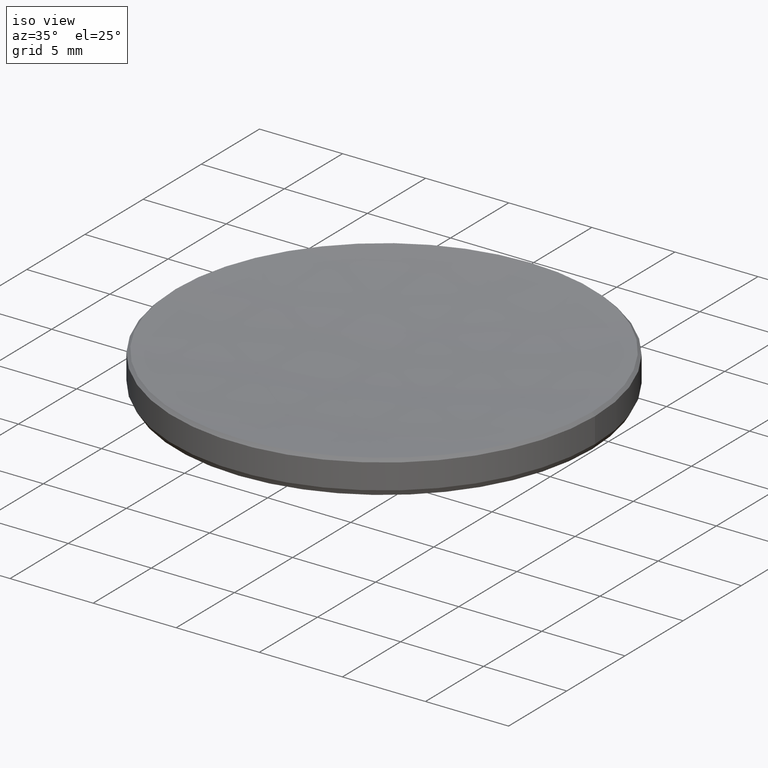
[diagram: clean part render]
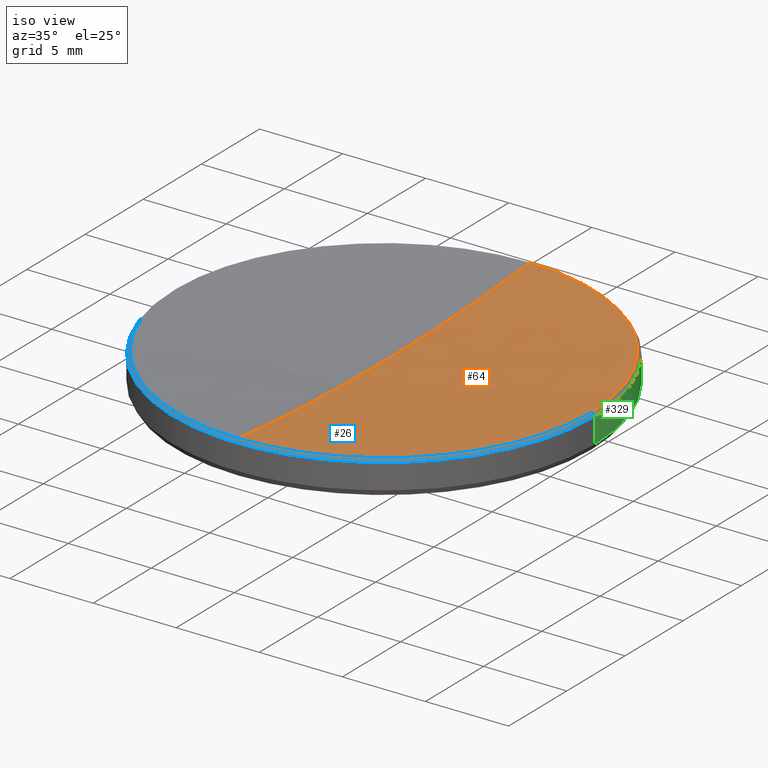
[diagram: same view with three faces highlighted in distinct colors, each labeled with its STEP entity id]
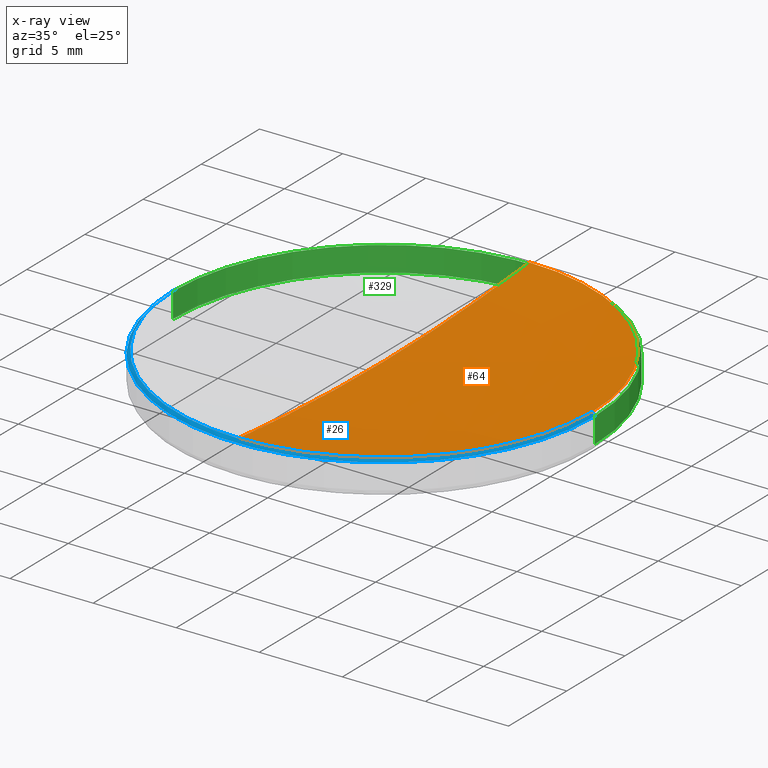
[diagram: x-ray of the same camera — body ghosted, the three highlighted faces saturated]
A machine part, iso view with three faces highlighted in distinct colors.
The next image is the same camera in x-ray (body ghosted, the three faces saturated) — at least one of them is partly hidden behind the body in this view.
Their STEP definitions:

[orange] entity #64 — the highlighted spherical surface has radius 131.56 mm.
#2 = VERTEX_POINT ( 'NONE', #222 ) ;
#9 = DIRECTION ( 'NONE',  ( 1.000000000000000000, 0.000000000000000000, 0.000000000000000000 ) ) ;
#21 = AXIS2_PLACEMENT_3D ( 'NONE', #190, #321, #36 ) ;
#22 = VERTEX_POINT ( 'NONE', #66 ) ;
#35 = CARTESIAN_POINT ( 'NONE',  ( 0.000000000000000000, 0.000000000000000000, 5.982434512500911516 ) ) ;
#36 = DIRECTION ( 'NONE',  ( -1.224646799147353207E-16, -1.000000000000000000, 0.000000000000000000 ) ) ;
#45 = DIRECTION ( 'NONE',  ( 1.000000000000000000, 0.000000000000000000, 0.000000000000000000 ) ) ;
#49 = ORIENTED_EDGE ( 'NONE', *, *, #319, .T. ) ;
#50 = EDGE_LOOP ( 'NONE', ( #210, #49, #77, #207 ) ) ;
#54 = CARTESIAN_POINT ( 'NONE',  ( 0.000000000000000000, 0.000000000000000000, 136.9455749538715850 ) ) ;
#62 = SPHERICAL_SURFACE ( 'NONE', #87, 131.5600000000000023 ) ;
#64 = ADVANCED_FACE ( 'NONE', ( #286 ), #62, .F. ) ;
#66 = CARTESIAN_POINT ( 'NONE',  ( 12.51756548749907694, 1.544130542827725172E-15, 5.982434512500911516 ) ) ;
#72 = AXIS2_PLACEMENT_3D ( 'NONE', #248, #45, #175 ) ;
#77 = ORIENTED_EDGE ( 'NONE', *, *, #135, .T. ) ;
#87 = AXIS2_PLACEMENT_3D ( 'NONE', #54, #143, #318 ) ;
#104 = VERTEX_POINT ( 'NONE', #236 ) ;
#111 = CIRCLE ( 'NONE', #279, 12.51756548749907694 ) ;
#135 = EDGE_CURVE ( 'NONE', #2, #22, #111, .T. ) ;
#143 = DIRECTION ( 'NONE',  ( -1.000000000000000000, 0.000000000000000000, 0.000000000000000000 ) ) ;
#157 = DIRECTION ( 'NONE',  ( -0.000000000000000000, -0.000000000000000000, 1.000000000000000000 ) ) ;
#162 = CIRCLE ( 'NONE', #72, 131.5600000000000023 ) ;
#175 = DIRECTION ( 'NONE',  ( 0.000000000000000000, 0.000000000000000000, -1.000000000000000000 ) ) ;
#189 = CARTESIAN_POINT ( 'NONE',  ( 0.000000000000000000, 0.000000000000000000, 5.982434512500911516 ) ) ;
#190 = CARTESIAN_POINT ( 'NONE',  ( 0.000000000000000000, 0.000000000000000000, 136.9455749538715850 ) ) ;
#192 = AXIS2_PLACEMENT_3D ( 'NONE', #35, #157, #9 ) ;
#194 = DIRECTION ( 'NONE',  ( 1.000000000000000000, 0.000000000000000000, 0.000000000000000000 ) ) ;
#207 = ORIENTED_EDGE ( 'NONE', *, *, #313, .T. ) ;
#210 = ORIENTED_EDGE ( 'NONE', *, *, #247, .F. ) ;
#219 = CARTESIAN_POINT ( 'NONE',  ( 0.000000000000000000, 12.51756548749897568, 5.982434512500911516 ) ) ;
#220 = CIRCLE ( 'NONE', #192, 12.51756548749907694 ) ;
#222 = CARTESIAN_POINT ( 'NONE',  ( -1.532959650738299683E-15, -12.51756548749897568, 5.982434512500911516 ) ) ;
#236 = CARTESIAN_POINT ( 'NONE',  ( 0.000000000000000000, 8.055726644791288963E-15, 5.385574953871569370 ) ) ;
#247 = EDGE_CURVE ( 'NONE', #104, #267, #162, .T. ) ;
#248 = CARTESIAN_POINT ( 'NONE',  ( 0.000000000000000000, 0.000000000000000000, 136.9455749538715850 ) ) ;
#267 = VERTEX_POINT ( 'NONE', #219 ) ;
#279 = AXIS2_PLACEMENT_3D ( 'NONE', #189, #290, #194 ) ;
#286 = FACE_OUTER_BOUND ( 'NONE', #50, .T. ) ;
#290 = DIRECTION ( 'NONE',  ( -0.000000000000000000, -0.000000000000000000, 1.000000000000000000 ) ) ;
#313 = EDGE_CURVE ( 'NONE', #22, #267, #220, .T. ) ;
#318 = DIRECTION ( 'NONE',  ( 0.000000000000000000, 1.000000000000000000, 0.000000000000000000 ) ) ;
#319 = EDGE_CURVE ( 'NONE', #104, #2, #322, .T. ) ;
#321 = DIRECTION ( 'NONE',  ( -1.000000000000000000, 1.224646799147353207E-16, 0.000000000000000000 ) ) ;
#322 = CIRCLE ( 'NONE', #21, 131.5600000000000023 ) ;

[blue] entity #26 — the highlighted conical surface has half-angle 45 deg.
#2 = VERTEX_POINT ( 'NONE', #222 ) ;
#8 = CARTESIAN_POINT ( 'NONE',  ( 12.51756548749907161, 1.532959650738311713E-15, 5.982434512500911516 ) ) ;
#13 = DIRECTION ( 'NONE',  ( 0.000000000000000000, 0.000000000000000000, -1.000000000000000000 ) ) ;
#22 = VERTEX_POINT ( 'NONE', #66 ) ;
#24 = VERTEX_POINT ( 'NONE', #34 ) ;
#26 = ADVANCED_FACE ( 'NONE', ( #293 ), #39, .T. ) ;
#27 = ORIENTED_EDGE ( 'NONE', *, *, #242, .F. ) ;
#31 = DIRECTION ( 'NONE',  ( -0.7071067811865777708, 0.000000000000000000, -0.7071067811865172636 ) ) ;
#34 = CARTESIAN_POINT ( 'NONE',  ( -12.51756548749907694, 0.000000000000000000, 5.982434512500911516 ) ) ;
#38 = CARTESIAN_POINT ( 'NONE',  ( 12.69999999999999929, 1.555301434917138433E-15, 5.799999999999999822 ) ) ;
#39 = CONICAL_SURFACE ( 'NONE', #296, 12.51756548749907161, 0.7853981633974911336 ) ;
#40 = VECTOR ( 'NONE', #31, 1000.000000000000000 ) ;
#46 = VERTEX_POINT ( 'NONE', #38 ) ;
#57 = DIRECTION ( 'NONE',  ( -0.000000000000000000, -0.000000000000000000, 1.000000000000000000 ) ) ;
#66 = CARTESIAN_POINT ( 'NONE',  ( 12.51756548749907694, 1.544130542827725172E-15, 5.982434512500911516 ) ) ;
#69 = CIRCLE ( 'NONE', #88, 12.51756548749907694 ) ;
#88 = AXIS2_PLACEMENT_3D ( 'NONE', #115, #57, #249 ) ;
#90 = CARTESIAN_POINT ( 'NONE',  ( -12.51756548749907161, 0.000000000000000000, 5.982434512500911516 ) ) ;
#94 = CARTESIAN_POINT ( 'NONE',  ( -12.69999999999999929, 0.000000000000000000, 5.799999999999999822 ) ) ;
#111 = CIRCLE ( 'NONE', #279, 12.51756548749907694 ) ;
#113 = DIRECTION ( 'NONE',  ( 0.7071067811865777708, 8.659560562355303869E-17, -0.7071067811865172636 ) ) ;
#115 = CARTESIAN_POINT ( 'NONE',  ( 0.000000000000000000, 0.000000000000000000, 5.982434512500911516 ) ) ;
#116 = LINE ( 'NONE', #8, #237 ) ;
#121 = EDGE_CURVE ( 'NONE', #22, #46, #116, .T. ) ;
#131 = EDGE_CURVE ( 'NONE', #24, #177, #136, .T. ) ;
#135 = EDGE_CURVE ( 'NONE', #2, #22, #111, .T. ) ;
#136 = LINE ( 'NONE', #90, #40 ) ;
#167 = DIRECTION ( 'NONE',  ( 0.000000000000000000, 0.000000000000000000, -1.000000000000000000 ) ) ;
#168 = CARTESIAN_POINT ( 'NONE',  ( 0.000000000000000000, 0.000000000000000000, 5.982434512500911516 ) ) ;
#177 = VERTEX_POINT ( 'NONE', #94 ) ;
#183 = ORIENTED_EDGE ( 'NONE', *, *, #201, .F. ) ;
#189 = CARTESIAN_POINT ( 'NONE',  ( 0.000000000000000000, 0.000000000000000000, 5.982434512500911516 ) ) ;
#194 = DIRECTION ( 'NONE',  ( 1.000000000000000000, 0.000000000000000000, 0.000000000000000000 ) ) ;
#201 = EDGE_CURVE ( 'NONE', #46, #177, #330, .T. ) ;
#222 = CARTESIAN_POINT ( 'NONE',  ( -1.532959650738299683E-15, -12.51756548749897568, 5.982434512500911516 ) ) ;
#224 = CARTESIAN_POINT ( 'NONE',  ( 0.000000000000000000, 0.000000000000000000, 5.799999999999999822 ) ) ;
#235 = ORIENTED_EDGE ( 'NONE', *, *, #121, .F. ) ;
#237 = VECTOR ( 'NONE', #113, 1000.000000000000000 ) ;
#242 = EDGE_CURVE ( 'NONE', #24, #2, #69, .T. ) ;
#249 = DIRECTION ( 'NONE',  ( 1.000000000000000000, 0.000000000000000000, 0.000000000000000000 ) ) ;
#258 = EDGE_LOOP ( 'NONE', ( #235, #283, #27, #311, #183 ) ) ;
#268 = DIRECTION ( 'NONE',  ( -1.000000000000000000, 0.000000000000000000, 0.000000000000000000 ) ) ;
#279 = AXIS2_PLACEMENT_3D ( 'NONE', #189, #290, #194 ) ;
#283 = ORIENTED_EDGE ( 'NONE', *, *, #135, .F. ) ;
#290 = DIRECTION ( 'NONE',  ( -0.000000000000000000, -0.000000000000000000, 1.000000000000000000 ) ) ;
#293 = FACE_OUTER_BOUND ( 'NONE', #258, .T. ) ;
#296 = AXIS2_PLACEMENT_3D ( 'NONE', #168, #13, #268 ) ;
#297 = DIRECTION ( 'NONE',  ( 1.000000000000000000, 0.000000000000000000, 0.000000000000000000 ) ) ;
#308 = AXIS2_PLACEMENT_3D ( 'NONE', #224, #167, #297 ) ;
#311 = ORIENTED_EDGE ( 'NONE', *, *, #131, .T. ) ;
#330 = CIRCLE ( 'NONE', #308, 12.69999999999999929 ) ;

[green] entity #329 — the highlighted cylindrical surface (partial cylindrical patch) has radius 12.7 mm, axis along (-0, -0, -1).
#3 = ORIENTED_EDGE ( 'NONE', *, *, #281, .T. ) ;
#14 = AXIS2_PLACEMENT_3D ( 'NONE', #139, #264, #213 ) ;
#15 = CARTESIAN_POINT ( 'NONE',  ( -12.69999999999999929, 0.000000000000000000, 10.00000000000000000 ) ) ;
#17 = EDGE_CURVE ( 'NONE', #177, #46, #191, .T. ) ;
#29 = DIRECTION ( 'NONE',  ( -1.000000000000000000, 0.000000000000000000, 0.000000000000000000 ) ) ;
#38 = CARTESIAN_POINT ( 'NONE',  ( 12.69999999999999929, 1.555301434917138433E-15, 5.799999999999999822 ) ) ;
#42 = CARTESIAN_POINT ( 'NONE',  ( -12.69999999999999929, 0.000000000000000000, 4.282866881517001900 ) ) ;
#46 = VERTEX_POINT ( 'NONE', #38 ) ;
#59 = DIRECTION ( 'NONE',  ( 1.000000000000000000, 0.000000000000000000, 0.000000000000000000 ) ) ;
#70 = VECTOR ( 'NONE', #289, 1000.000000000000000 ) ;
#82 = DIRECTION ( 'NONE',  ( 0.000000000000000000, 0.000000000000000000, -1.000000000000000000 ) ) ;
#94 = CARTESIAN_POINT ( 'NONE',  ( -12.69999999999999929, 0.000000000000000000, 5.799999999999999822 ) ) ;
#101 = EDGE_CURVE ( 'NONE', #234, #180, #212, .T. ) ;
#108 = ORIENTED_EDGE ( 'NONE', *, *, #227, .F. ) ;
#109 = ORIENTED_EDGE ( 'NONE', *, *, #17, .T. ) ;
#114 = LINE ( 'NONE', #263, #154 ) ;
#132 = DIRECTION ( 'NONE',  ( -0.000000000000000000, -0.000000000000000000, 1.000000000000000000 ) ) ;
#137 = CYLINDRICAL_SURFACE ( 'NONE', #14, 12.69999999999999929 ) ;
#139 = CARTESIAN_POINT ( 'NONE',  ( 0.000000000000000000, 0.000000000000000000, 10.00000000000000000 ) ) ;
#151 = EDGE_LOOP ( 'NONE', ( #109, #3, #310, #108 ) ) ;
#154 = VECTOR ( 'NONE', #317, 1000.000000000000000 ) ;
#177 = VERTEX_POINT ( 'NONE', #94 ) ;
#180 = VERTEX_POINT ( 'NONE', #42 ) ;
#184 = AXIS2_PLACEMENT_3D ( 'NONE', #294, #82, #59 ) ;
#191 = CIRCLE ( 'NONE', #184, 12.69999999999999929 ) ;
#193 = FACE_OUTER_BOUND ( 'NONE', #151, .T. ) ;
#198 = CARTESIAN_POINT ( 'NONE',  ( 12.69999999999999929, 1.555301434917138433E-15, 4.282866881517001900 ) ) ;
#212 = CIRCLE ( 'NONE', #291, 12.69999999999999929 ) ;
#213 = DIRECTION ( 'NONE',  ( -1.000000000000000000, 0.000000000000000000, 0.000000000000000000 ) ) ;
#227 = EDGE_CURVE ( 'NONE', #177, #180, #244, .T. ) ;
#234 = VERTEX_POINT ( 'NONE', #198 ) ;
#244 = LINE ( 'NONE', #15, #70 ) ;
#263 = CARTESIAN_POINT ( 'NONE',  ( 12.69999999999999929, 1.555301434917138433E-15, 10.00000000000000000 ) ) ;
#264 = DIRECTION ( 'NONE',  ( -0.000000000000000000, -0.000000000000000000, -1.000000000000000000 ) ) ;
#265 = CARTESIAN_POINT ( 'NONE',  ( 0.000000000000000000, 0.000000000000000000, 4.282866881517001900 ) ) ;
#281 = EDGE_CURVE ( 'NONE', #46, #234, #114, .T. ) ;
#289 = DIRECTION ( 'NONE',  ( -0.000000000000000000, -0.000000000000000000, -1.000000000000000000 ) ) ;
#291 = AXIS2_PLACEMENT_3D ( 'NONE', #265, #132, #29 ) ;
#294 = CARTESIAN_POINT ( 'NONE',  ( 0.000000000000000000, 0.000000000000000000, 5.799999999999999822 ) ) ;
#310 = ORIENTED_EDGE ( 'NONE', *, *, #101, .T. ) ;
#317 = DIRECTION ( 'NONE',  ( -0.000000000000000000, -0.000000000000000000, -1.000000000000000000 ) ) ;
#329 = ADVANCED_FACE ( 'NONE', ( #193 ), #137, .T. ) ;